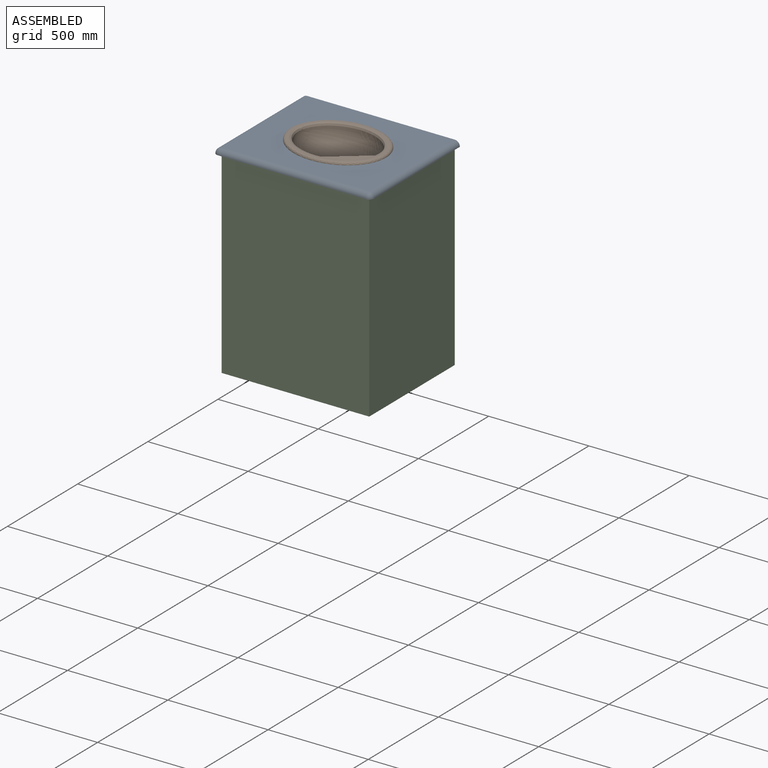
[diagram: assembled view]
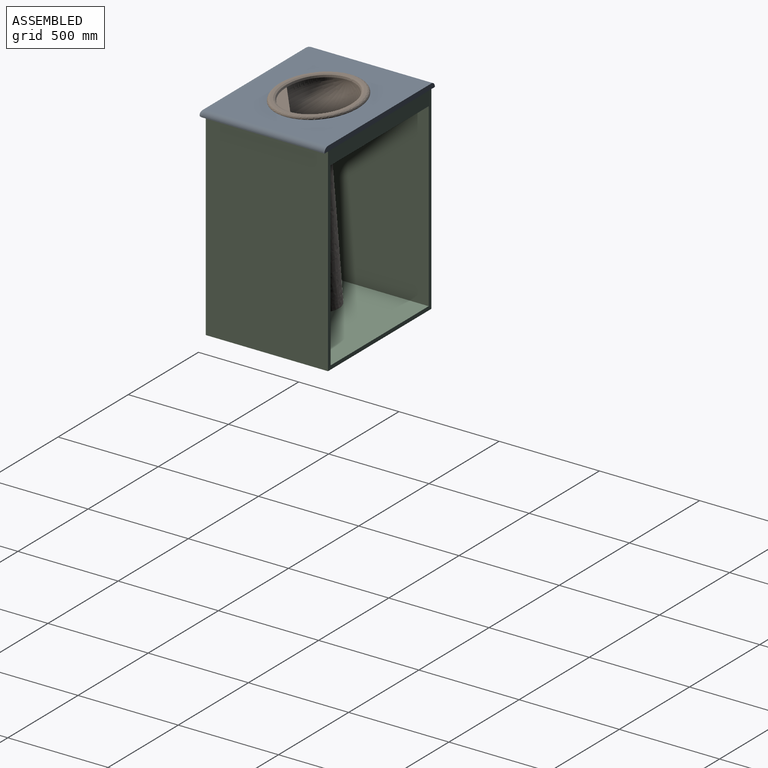
[diagram: assembled view, second angle]
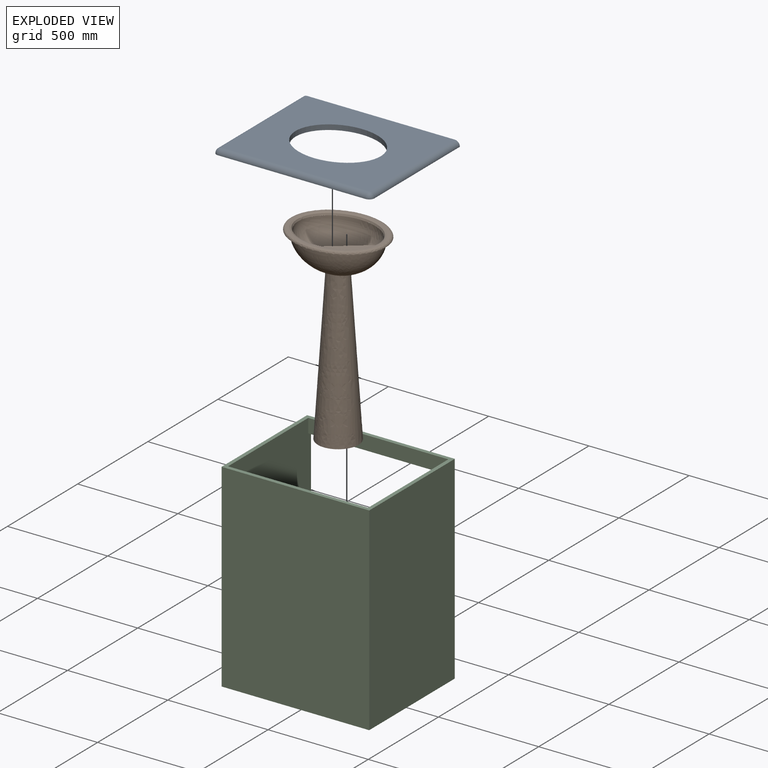
[diagram: exploded view]
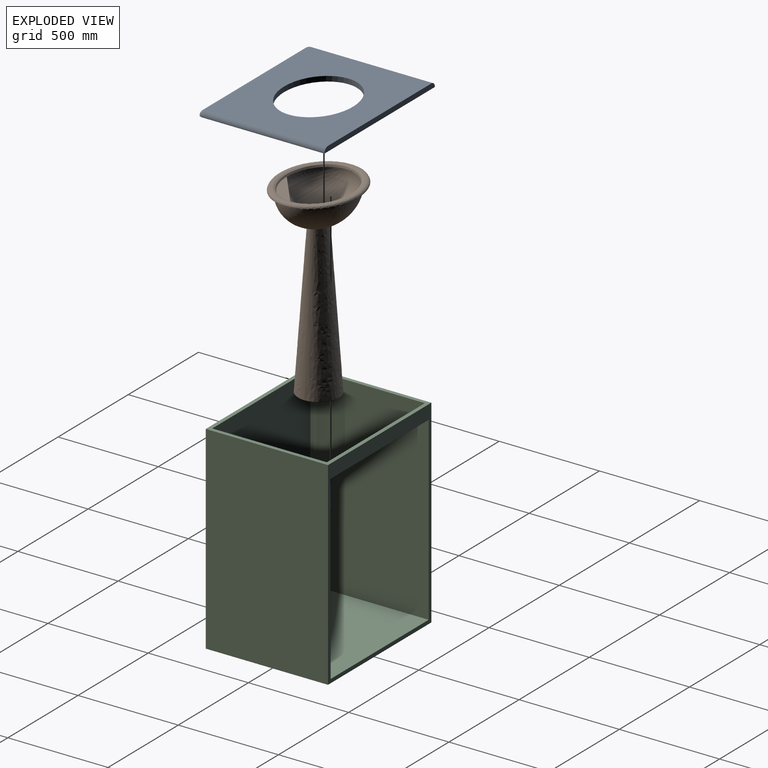
[diagram: exploded view, second angle]
ASSEMBLY  parts=3 mates=2
PART A: 9 faces, bbox 787.4x635x25.4 mm
  f0: plane 787.4x25.4mm, normal (0,1,0), area 19723.1mm2, adj f1,f2,f4,f7
  f1: plane 736.6x609.6mm, normal (0,0,1), area 334452.1mm2, adj f0,f3,f4,f5,f7
  f2: plane 787.4x635mm, normal (0,0,-1), area 385142.9mm2, adj f0,f3,f4,f5,f6,f7,f8
  f3: extruded ~425.45x342.9mm, area 30744.3mm2, adj f1,f2
  f4: cylinder r=25.4mm len=609.6mm, axis (0,-1,0), area 24322mm2, adj f0,f1,f2,f6
  f5: cylinder r=25.4mm len=736.6mm, axis (-1,0,0), area 29389mm2, adj f1,f2,f6,f8
  f6: sphere r=25.4mm, area 1013.4mm2, adj f2,f4,f5
  f7: cylinder r=25.4mm len=609.6mm, axis (0,1,0), area 24322mm2, adj f0,f1,f2,f8
  f8: sphere r=25.4mm, area 1013.4mm2, adj f2,f5,f7
PART B: 13 faces, bbox 493.3x410.8x956.9 mm
  f0: plane 216.88x175.6mm, normal (0,0,1), area 11.1mm2, adj f4,f8
  f1: plane 217.12x175.84mm, normal (0,0,1), area 10.7mm2, adj f4,f8
  f2: plane 216.83x175.54mm, normal (0,0,1), area 10.7mm2, adj f4,f8
  f3: plane 214.53x173.25mm, normal (0,0,1), area 11.1mm2, adj f4,f8
  f4: revolved ~400.05x317.5mm, area 184326.3mm2, adj f0,f1,f2,f3,f12
  f5: plane 476.44x393.89mm, normal (0,0,-1), area 32785.9mm2, adj f7,f9
  f6: plane 450.85x368.34mm, normal (0,0,1), area 15886.6mm2, adj f8,f9
  f7: revolved ~425.45x342.9mm, area 207138.1mm2, adj f5,f11
  f8: bspline ~425.5x342.94mm, area 23136.7mm2, adj f0,f1,f2,f3,f6
  f9: bspline ~476.25x393.75mm, area 26757.5mm2, adj f5,f6
  f10: plane 203.2x203.2mm, normal (0,0,-1), area 30400.2mm2, adj f11,f12
  f11: bspline ~762x203.2mm, area 363438.2mm2, adj f7,f10
  f12: cylinder r=25.4mm len=769.64mm, axis (0,0,1), area 122828.9mm2, adj f4,f10
PART C: 12 faces, bbox 736.6x609.6x990.6 mm
  f0: plane 971.55x590.55mm, normal (-1,0,0), area 572418.2mm2, adj f1,f2,f7,f9,f10,f11
  f1: plane 736.6x609.6mm, normal (0,0,1), area 49838.6mm2, adj f0,f2,f3,f4,f5,f7,f8,f11
  f2: plane 990.6x736.6mm, normal (0,1,0), area 99838.5mm2, adj f0,f1,f4,f5,f6,f8,f9,f10
  f3: plane 990.6x736.6mm, normal (0,-1,0), area 729676mm2, adj f1,f4,f5,f6
  f4: plane 990.6x609.6mm, normal (1,0,0), area 603869.8mm2, adj f1,f2,f3,f6
  f5: plane 990.6x609.6mm, normal (-1,0,0), area 603869.8mm2, adj f1,f2,f3,f6
  f6: plane 736.6x609.6mm, normal (0,0,-1), area 449031.4mm2, adj f2,f3,f4,f5
  f7: plane 971.55x698.5mm, normal (0,1,0), area 678627.7mm2, adj f0,f1,f8,f9
  f8: plane 971.55x590.55mm, normal (1,0,0), area 572418.2mm2, adj f1,f2,f7,f9,f10,f11
  f9: plane 698.5x590.55mm, normal (0,0,1), area 412499.2mm2, adj f0,f2,f7,f8
  f10: plane 698.5x19.05mm, normal (0,0,-1), area 13306.4mm2, adj f0,f2,f8,f11
  f11: plane 698.5x69.85mm, normal (0,-1,0), area 48790.2mm2, adj f0,f1,f8,f10
PLACE A t=(12.7,-12.7,990.6)mm
PLACE B t=(0,0,1016)mm
PLACE C at identity
MATE fastened A.f0 <-> C.f2  axis (0,1,0) through (0,304.8,990.6)mm
MATE fastened B.f12 <-> A.f1  axis (0,0,-1) through (0,0,1016)mm
